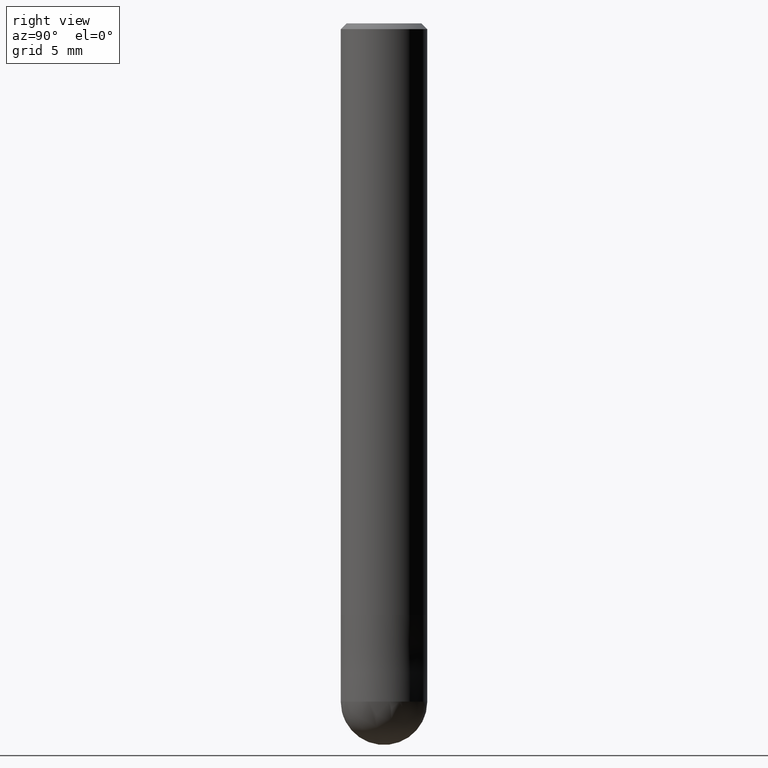
[diagram: clean part render]
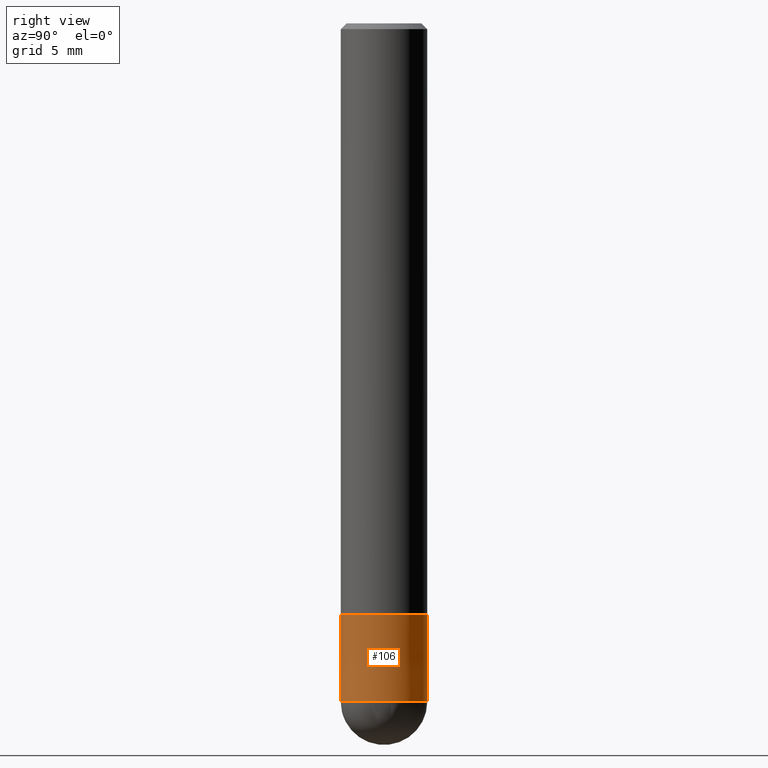
[diagram: same view with one face highlighted and labeled with its STEP entity id]
A machine part, right view. The second image highlights one B-rep face of the part: STEP entity #106.
In plain terms, the highlighted conical surface has half-angle 0.001 deg.
Its self-contained STEP definition (entity closure, byte-faithful):
#62=VERTEX_POINT('',#154);
#64=EDGE_CURVE('',#62,#96,#156,.T.);
#76=EDGE_CURVE('',#114,#62,#172,.T.);
#78=VERTEX_POINT('',#174);
#90=EDGE_CURVE('',#78,#114,#187,.T.);
#96=VERTEX_POINT('',#193);
#106=ADVANCED_FACE('',(#205),#206,.T.);
#114=VERTEX_POINT('',#215);
#122=EDGE_CURVE('',#78,#96,#224,.T.);
#154=CARTESIAN_POINT('',(3.67381906146713E-016,-3.0,-47.0));
#156=LINE('',#250,#251);
#172=CIRCLE('',#271,3.0);
#174=CARTESIAN_POINT('',(0.0,2.9999,-41.0));
#187=LINE('',#289,#290);
#193=CARTESIAN_POINT('',(3.67369660083175E-016,-2.9999,-41.0));
#205=FACE_OUTER_BOUND('',#309,.T.);
#206=CONICAL_SURFACE('',#310,2.99995,1.66666666652326E-005);
#215=CARTESIAN_POINT('',(0.0,3.0,-47.0));
#224=CIRCLE('',#332,2.9999);
#250=CARTESIAN_POINT('',(3.67375783114944E-016,-2.99995,-44.0));
#251=VECTOR('',#356,1.0);
#271=AXIS2_PLACEMENT_3D('',#383,#384,#385);
#289=CARTESIAN_POINT('',(-3.67375783114944E-016,2.99995,-44.0));
#290=VECTOR('',#398,1.0);
#309=EDGE_LOOP('',(#417,#418,#419,#420));
#310=AXIS2_PLACEMENT_3D('',#421,#422,#423);
#332=AXIS2_PLACEMENT_3D('',#448,#449,#450);
#356=DIRECTION('',(-2.04101058943386E-021,1.6666666664461E-005,0.999999999861111));
#383=CARTESIAN_POINT('',(0.0,0.0,-47.0));
#384=DIRECTION('',(0.0,0.0,-1.0));
#385=DIRECTION('',(0.0,1.0,0.0));
#398=DIRECTION('',(-2.04101058943386E-021,1.6666666664461E-005,-0.999999999861111));
#417=ORIENTED_EDGE('',*,*,#90,.F.);
#418=ORIENTED_EDGE('',*,*,#122,.T.);
#419=ORIENTED_EDGE('',*,*,#64,.F.);
#420=ORIENTED_EDGE('',*,*,#76,.F.);
#421=CARTESIAN_POINT('',(0.0,0.0,-44.0));
#422=DIRECTION('',(0.0,-0.0,-1.0));
#423=DIRECTION('',(0.0,1.0,0.0));
#448=CARTESIAN_POINT('',(0.0,0.0,-41.0));
#449=DIRECTION('',(0.0,0.0,-1.0));
#450=DIRECTION('',(0.0,1.0,0.0));